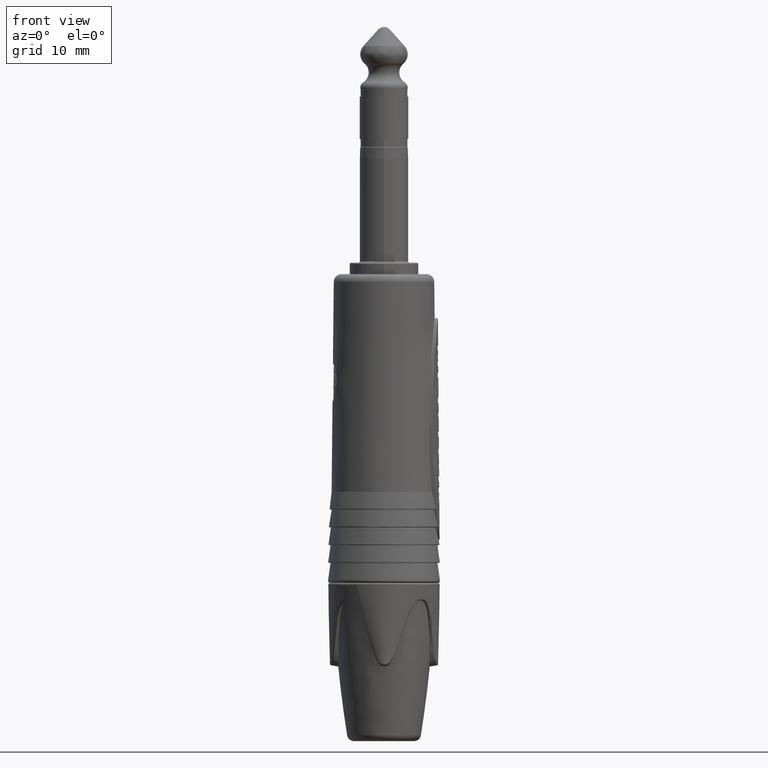
[diagram: clean part render]
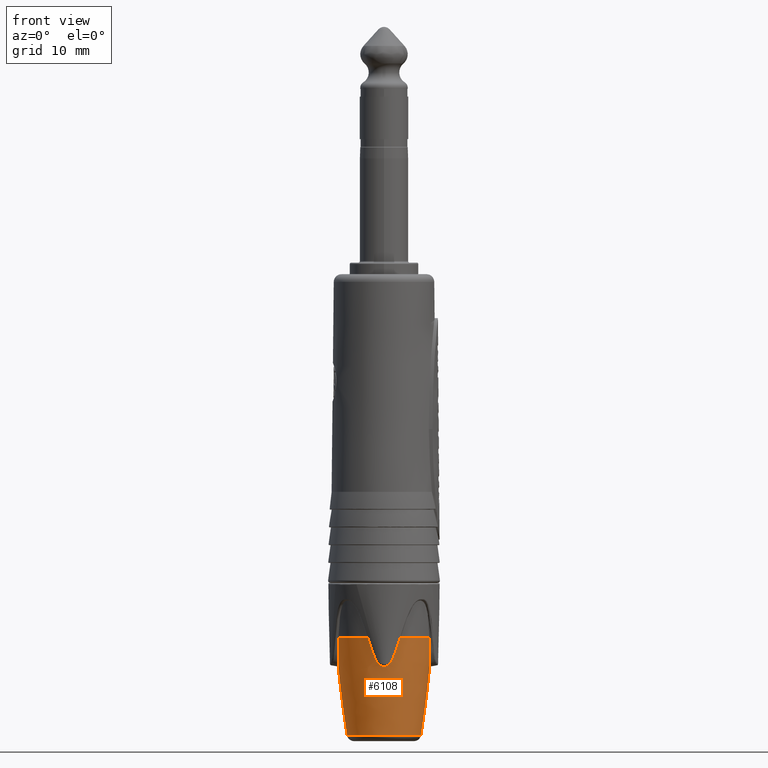
[diagram: same view with one face highlighted and labeled with its STEP entity id]
A machine part, front view. The second image highlights one B-rep face of the part: STEP entity #6108.
In plain terms, the highlighted face is a freeform B-spline surface patch.
Its self-contained STEP definition (entity closure, byte-faithful):
#52=CARTESIAN_POINT('',(1.875179710663E0,-5.910851018883E0,-4.916340000539E1));
#53=CARTESIAN_POINT('',(1.834458048781E0,-5.912980867123E0,-4.929712143090E1));
#54=CARTESIAN_POINT('',(1.755068878985E0,-5.916197511891E0,-4.955490481412E1));
#55=CARTESIAN_POINT('',(1.642533156775E0,-5.918552264357E0,-4.991081412096E1));
#56=CARTESIAN_POINT('',(1.534442180647E0,-5.919130703363E0,-5.024102571511E1));
#57=CARTESIAN_POINT('',(1.429600564056E0,-5.918370577495E0,-5.054822913179E1));
#58=CARTESIAN_POINT('',(1.326387766742E0,-5.916840193208E0,-5.083376196006E1));
#59=CARTESIAN_POINT('',(1.221233425204E0,-5.914857361688E0,-5.110389649942E1));
#60=CARTESIAN_POINT('',(1.118283861204E0,-5.912902551534E0,-5.134489744786E1));
#61=CARTESIAN_POINT('',(1.012012093298E0,-5.911602088583E0,-5.156300582216E1));
#62=CARTESIAN_POINT('',(9.012623192988E-1,-5.910946806758E0,-5.175895841291E1));
#63=CARTESIAN_POINT('',(7.777007258640E-1,-5.911574733193E0,-5.193693654727E1));
#64=CARTESIAN_POINT('',(6.249637256877E-1,-5.913844758225E0,-5.210302965275E1));
#65=CARTESIAN_POINT('',(4.405433769313E-1,-5.917871330197E0,-5.223650735339E1));
#66=CARTESIAN_POINT('',(2.172704898572E-1,-5.922260620308E0,-5.232007666811E1));
#67=CARTESIAN_POINT('',(7.337829063037E-2,-5.923477169424E0,-5.233390176513E1));
#68=CARTESIAN_POINT('',(-2.002234560644E-14,-5.923477169381E0,
-5.233390176556E1));
#74=CARTESIAN_POINT('',(-1.433572221522E2,3.478114662995E-14,
-3.766172366991E1));
#75=DIRECTION('',(0.E0,-1.E0,0.E0));
#76=DIRECTION('',(9.875777213030E-1,0.E0,-1.571312966471E-1));
#77=AXIS2_PLACEMENT_3D('',#74,#75,#76);
#79=CARTESIAN_POINT('',(0.E0,0.E0,-6.123141816698E1));
#80=DIRECTION('',(0.E0,0.E0,1.E0));
#81=DIRECTION('',(-1.E0,0.E0,0.E0));
#82=AXIS2_PLACEMENT_3D('',#79,#80,#81);
#84=CARTESIAN_POINT('',(1.433572221522E2,-1.788744234304E-14,
-3.766172366991E1));
#85=DIRECTION('',(0.E0,1.E0,0.E0));
#86=DIRECTION('',(-9.875777213030E-1,0.E0,-1.571312966471E-1));
#87=AXIS2_PLACEMENT_3D('',#84,#85,#86);
#89=CARTESIAN_POINT('',(5.923477169381E0,4.872080167943E-8,-5.233390176556E1));
#90=CARTESIAN_POINT('',(5.923477169358E0,-7.905117981753E-2,-5.233390176580E1));
#91=CARTESIAN_POINT('',(5.922052053947E0,-2.316773253327E-1,-5.231714090984E1));
#92=CARTESIAN_POINT('',(5.917572631786E0,-4.535341655852E-1,-5.222948734047E1));
#93=CARTESIAN_POINT('',(5.913510662887E0,-6.417769712108E-1,-5.208843472345E1));
#94=CARTESIAN_POINT('',(5.911380654618E0,-7.968981006221E-1,-5.191250475629E1));
#95=CARTESIAN_POINT('',(5.910965632853E0,-9.212794774285E-1,-5.172654485050E1));
#96=CARTESIAN_POINT('',(5.911827255006E0,-1.033723186739E0,-5.152088066504E1));
#97=CARTESIAN_POINT('',(5.913250632258E0,-1.139875686271E0,-5.129686203912E1));
#98=CARTESIAN_POINT('',(5.915288368659E0,-1.242175863740E0,-5.105158138940E1));
#99=CARTESIAN_POINT('',(5.917143384587E0,-1.345160674651E0,-5.078320597617E1));
#100=CARTESIAN_POINT('',(5.918544203984E0,-1.445225135356E0,-5.050317898360E1));
#101=CARTESIAN_POINT('',(5.919122405654E0,-1.546823311163E0,-5.020371219331E1));
#102=CARTESIAN_POINT('',(5.918417242707E0,-1.651161245531E0,-4.988377013454E1));
#103=CARTESIAN_POINT('',(5.916031399196E0,-1.759575238774E0,-4.954031968929E1));
#104=CARTESIAN_POINT('',(5.912900128867E0,-1.836003165491E0,-4.929204663238E1));
#105=CARTESIAN_POINT('',(5.910851111423E0,-1.875179418964E0,-4.916340000538E1));
#111=CARTESIAN_POINT('',(5.895370246613E0,-2.071790861949E0,-4.852603937695E1));
#138=CARTESIAN_POINT('',(5.910851111423E0,-1.875179418964E0,-4.916340000538E1));
#139=CARTESIAN_POINT('',(5.909700894473E0,-1.897276664465E0,-4.909076879057E1));
#140=CARTESIAN_POINT('',(5.907010828662E0,-1.941298194827E0,-4.894673824752E1));
#141=CARTESIAN_POINT('',(5.901860839818E0,-2.006564809322E0,-4.873516083732E1));
#142=CARTESIAN_POINT('',(5.897664359079E0,-2.050037355403E0,-4.859555672493E1));
#143=CARTESIAN_POINT('',(5.895370246613E0,-2.071790861949E0,-4.852603937695E1));
#145=CARTESIAN_POINT('',(0.E0,0.E0,-4.852583203403E1));
#146=DIRECTION('',(0.E0,0.E0,1.E0));
#147=DIRECTION('',(3.315591024008E-1,-9.434344500892E-1,0.E0));
#148=AXIS2_PLACEMENT_3D('',#145,#146,#147);
#150=CARTESIAN_POINT('',(0.E0,0.E0,-4.852583203403E1));
#151=DIRECTION('',(0.E0,0.E0,1.E0));
#152=DIRECTION('',(-9.434344446351E-1,-3.315591179204E-1,0.E0));
#153=AXIS2_PLACEMENT_3D('',#150,#151,#152);
#171=CARTESIAN_POINT('',(2.071792250662E0,-5.895370034508E0,-4.852603587080E1));
#173=CARTESIAN_POINT('',(2.071792250662E0,-5.895370034508E0,-4.852603587080E1));
#174=CARTESIAN_POINT('',(2.050038731869E0,-5.897664152527E0,-4.859555321701E1));
#175=CARTESIAN_POINT('',(2.006564592116E0,-5.901860790190E0,-4.873516248002E1));
#176=CARTESIAN_POINT('',(1.941298630676E0,-5.907010718830E0,-4.894673778101E1));
#177=CARTESIAN_POINT('',(1.897276955925E0,-5.909700800852E0,-4.909076879118E1));
#178=CARTESIAN_POINT('',(1.875179710663E0,-5.910851018883E0,-4.916340000539E1));
#566=CARTESIAN_POINT('',(-2.002234560644E-14,-5.923477169381E0,
-5.233390176556E1));
#567=CARTESIAN_POINT('',(-7.213547899493E-2,-5.923477169339E0,
-5.233390176599E1));
#568=CARTESIAN_POINT('',(-2.135990446687E-1,-5.922293791511E0,
-5.232023343906E1));
#569=CARTESIAN_POINT('',(-4.294029303049E-1,-5.918114975303E0,
-5.224191501414E1));
#570=CARTESIAN_POINT('',(-6.142840832710E-1,-5.914061528668E0,
-5.211239022737E1));
#571=CARTESIAN_POINT('',(-7.657145439086E-1,-5.911708467421E0,
-5.195160977790E1));
#572=CARTESIAN_POINT('',(-8.881210263004E-1,-5.910963232877E0,
-5.177946667423E1));
#573=CARTESIAN_POINT('',(-9.960171174867E-1,-5.911456247159E0,
-5.159304218988E1));
#574=CARTESIAN_POINT('',(-1.099666723316E0,-5.912637823779E0,
-5.138501162046E1));
#575=CARTESIAN_POINT('',(-1.201749879997E0,-5.914449375907E0,
-5.115160057521E1));
#576=CARTESIAN_POINT('',(-1.306312129406E0,-5.916499093E0,-5.088697165501E1));
#577=CARTESIAN_POINT('',(-1.412763760904E0,-5.918162289753E0,
-5.059637911759E1));
#578=CARTESIAN_POINT('',(-1.521195310729E0,-5.919120636560E0,
-5.028078091457E1));
#579=CARTESIAN_POINT('',(-1.634057436831E0,-5.918680854615E0,
-4.993735702509E1));
#580=CARTESIAN_POINT('',(-1.751261300103E0,-5.916340504057E0,
-4.956723903987E1));
#581=CARTESIAN_POINT('',(-1.833235054648E0,-5.913044933156E0,
-4.930113621033E1));
#582=CARTESIAN_POINT('',(-1.875179321719E0,-5.910851142271E0,
-4.916340000542E1));
#588=CARTESIAN_POINT('',(-2.071793424779E0,-5.895370014426E0,
-4.852603088285E1));
#610=CARTESIAN_POINT('',(-1.875179321719E0,-5.910851142271E0,
-4.916340000542E1));
#611=CARTESIAN_POINT('',(-1.897276567242E0,-5.909700925684E0,
-4.909076879060E1));
#612=CARTESIAN_POINT('',(-1.941298448508E0,-5.907010826519E0,
-4.894673711376E1));
#613=CARTESIAN_POINT('',(-2.006563484230E0,-5.901860992100E0,
-4.873516480555E1));
#614=CARTESIAN_POINT('',(-2.050039889819E0,-5.897664137216E0,
-4.859554822160E1));
#615=CARTESIAN_POINT('',(-2.071793424779E0,-5.895370014426E0,
-4.852603088285E1));
#638=CARTESIAN_POINT('',(-5.895370173568E0,-2.071790618096E0,
-4.852604139411E1));
#640=CARTESIAN_POINT('',(-5.895370173568E0,-2.071790618096E0,
-4.852604139411E1));
#641=CARTESIAN_POINT('',(-5.897664284999E0,-2.050037117792E0,
-4.859555874632E1));
#642=CARTESIAN_POINT('',(-5.901860679625E0,-2.006565487713E0,
-4.873515989968E1));
#643=CARTESIAN_POINT('',(-5.907010709054E0,-1.941298499703E0,
-4.894673851825E1));
#644=CARTESIAN_POINT('',(-5.909700769642E0,-1.897277053141E0,
-4.909076879118E1));
#645=CARTESIAN_POINT('',(-5.910850988036E0,-1.875179807895E0,
-4.916340000539E1));
#651=CARTESIAN_POINT('',(-5.910850988036E0,-1.875179807895E0,
-4.916340000539E1));
#652=CARTESIAN_POINT('',(-5.913081933073E0,-1.832525237903E0,
-4.930346869722E1));
#653=CARTESIAN_POINT('',(-5.916393163356E0,-1.749560741568E0,
-4.957270589156E1));
#654=CARTESIAN_POINT('',(-5.918688687691E0,-1.632849706219E0,
-4.994107208805E1));
#655=CARTESIAN_POINT('',(-5.919119323633E0,-1.520777142683E0,
-5.028201471247E1));
#656=CARTESIAN_POINT('',(-5.918149636833E0,-1.411632091086E0,
-5.059967977863E1));
#657=CARTESIAN_POINT('',(-5.916437881004E0,-1.302191412831E0,
-5.089812398307E1));
#658=CARTESIAN_POINT('',(-5.914189163898E0,-1.189694208883E0,
-5.118154736397E1));
#659=CARTESIAN_POINT('',(-5.912313895847E0,-1.076982850900E0,
-5.143409387474E1));
#660=CARTESIAN_POINT('',(-5.911098177653E0,-9.567995549430E-1,
-5.166642443232E1));
#661=CARTESIAN_POINT('',(-5.911113824772E0,-8.278072197023E-1,
-5.187142291628E1));
#662=CARTESIAN_POINT('',(-5.912983648674E0,-6.697216965735E-1,
-5.206237154843E1));
#663=CARTESIAN_POINT('',(-5.917064256232E0,-4.758637705481E-1,
-5.221768197033E1));
#664=CARTESIAN_POINT('',(-5.921876627572E0,-2.448159503533E-1,
-5.231499750988E1));
#665=CARTESIAN_POINT('',(-5.923477169454E0,-8.382019821008E-2,
-5.233390176482E1));
#666=CARTESIAN_POINT('',(-5.923477169381E0,-1.461624142906E-7,
-5.233390176556E1));
#805=CARTESIAN_POINT('',(5.923477169381E0,4.872080167943E-8,-5.233390176556E1));
#5813=CARTESIAN_POINT('',(-4.779436043284E0,0.E0,-6.123141816698E1));
#5815=VERTEX_POINT('',#5813);
#5817=CARTESIAN_POINT('',(4.779436043284E0,0.E0,-6.123141816698E1));
#5819=VERTEX_POINT('',#5817);
#5830=VERTEX_POINT('',#805);
#5831=VERTEX_POINT('',#105);
#5832=VERTEX_POINT('',#111);
#5834=VERTEX_POINT('',#171);
#5835=VERTEX_POINT('',#178);
#5836=VERTEX_POINT('',#68);
#5837=VERTEX_POINT('',#582);
#5838=VERTEX_POINT('',#588);
#5840=VERTEX_POINT('',#638);
#5841=VERTEX_POINT('',#645);
#5842=VERTEX_POINT('',#666);
#6064=CARTESIAN_POINT('',(6.248831032367E0,0.E0,-4.852583203403E1));
#6065=CARTESIAN_POINT('',(5.939855088266E0,0.E0,-5.278063785672E1));
#6066=CARTESIAN_POINT('',(5.449759678259E0,0.E0,-5.701840203277E1));
#6067=CARTESIAN_POINT('',(4.779436043284E0,0.E0,-6.123141816698E1));
#6068=CARTESIAN_POINT('',(6.248831032367E0,-1.249766206473E1,
-4.852583203403E1));
#6069=CARTESIAN_POINT('',(5.939855088266E0,-1.187971017653E1,
-5.278063785672E1));
#6070=CARTESIAN_POINT('',(5.449759678259E0,-1.089951935652E1,
-5.701840203277E1));
#6071=CARTESIAN_POINT('',(4.779436043284E0,-9.558872086567E0,
-6.123141816698E1));
#6072=CARTESIAN_POINT('',(-6.248831032367E0,-1.249766206473E1,
-4.852583203403E1));
#6073=CARTESIAN_POINT('',(-5.939855088266E0,-1.187971017653E1,
-5.278063785672E1));
#6074=CARTESIAN_POINT('',(-5.449759678259E0,-1.089951935652E1,
-5.701840203277E1));
#6075=CARTESIAN_POINT('',(-4.779436043284E0,-9.558872086567E0,
-6.123141816698E1));
#6076=CARTESIAN_POINT('',(-6.248831032367E0,0.E0,-4.852583203403E1));
#6077=CARTESIAN_POINT('',(-5.939855088266E0,0.E0,-5.278063785672E1));
#6078=CARTESIAN_POINT('',(-5.449759678259E0,0.E0,-5.701840203277E1));
#6079=CARTESIAN_POINT('',(-4.779436043284E0,0.E0,-6.123141816698E1));
#6080=(BOUNDED_SURFACE()B_SPLINE_SURFACE(3,3,((#6064,#6065,#6066,#6067),(#6068,
#6069,#6070,#6071),(#6072,#6073,#6074,#6075),(#6076,#6077,#6078,#6079)),
.UNSPECIFIED.,.F.,.F.,.F.)B_SPLINE_SURFACE_WITH_KNOTS((4,4),(4,4),(0.E0,1.E0),(
0.E0,1.E0),.UNSPECIFIED.)GEOMETRIC_REPRESENTATION_ITEM()RATIONAL_B_SPLINE_SURFACE(((2.000909666043E0,1.999696777986E0,1.999696777986E0,2.000909666043E0),(
6.669698886809E-1,6.665655926619E-1,6.665655926619E-1,6.669698886809E-1),(
6.669698886809E-1,6.665655926619E-1,6.665655926619E-1,6.669698886809E-1),(
2.000909666043E0,1.999696777986E0,1.999696777986E0,2.000909666043E0)))REPRESENTATION_ITEM('')SURFACE());
#6082=ORIENTED_EDGE('',*,*,#6081,.F.);
#6084=ORIENTED_EDGE('',*,*,#6083,.F.);
#6086=ORIENTED_EDGE('',*,*,#6085,.F.);
#6088=ORIENTED_EDGE('',*,*,#6087,.T.);
#6090=ORIENTED_EDGE('',*,*,#6089,.F.);
#6092=ORIENTED_EDGE('',*,*,#6091,.F.);
#6094=ORIENTED_EDGE('',*,*,#6093,.T.);
#6096=ORIENTED_EDGE('',*,*,#6095,.F.);
#6098=ORIENTED_EDGE('',*,*,#6097,.F.);
#6099=ORIENTED_EDGE('',*,*,#6052,.F.);
#6101=ORIENTED_EDGE('',*,*,#6100,.F.);
#6103=ORIENTED_EDGE('',*,*,#6102,.T.);
#6105=ORIENTED_EDGE('',*,*,#6104,.F.);
#6106=EDGE_LOOP('',(#6082,#6084,#6086,#6088,#6090,#6092,#6094,#6096,#6098,#6099,
#6101,#6103,#6105));
#6107=FACE_OUTER_BOUND('',#6106,.F.);
#6108=ADVANCED_FACE('',(#6107),#6080,.T.);
#69=B_SPLINE_CURVE_WITH_KNOTS('',3,(#52,#53,#54,#55,#56,#57,#58,#59,#60,#61,#62,
#63,#64,#65,#66,#67,#68),.UNSPECIFIED.,.F.,.F.,(4,1,1,1,1,1,1,1,1,1,1,1,1,1,4),(
0.E0,7.142857142857E-2,1.428571428571E-1,2.142857142857E-1,2.857142857143E-1,
3.571428571429E-1,4.285714285714E-1,5.E-1,5.714285714286E-1,6.428571428571E-1,
7.142857142857E-1,7.857142857143E-1,8.571428571429E-1,9.285714285714E-1,1.E0),
.UNSPECIFIED.);
#78=CIRCLE('',#77,1.5E2);
#83=CIRCLE('',#82,4.779436043284E0);
#88=CIRCLE('',#87,1.5E2);
#106=B_SPLINE_CURVE_WITH_KNOTS('',3,(#89,#90,#91,#92,#93,#94,#95,#96,#97,#98,
#99,#100,#101,#102,#103,#104,#105),.UNSPECIFIED.,.F.,.F.,(4,1,1,1,1,1,1,1,1,1,1,
1,1,1,4),(0.E0,7.142857142857E-2,1.428571428571E-1,2.142857142857E-1,
2.857142857143E-1,3.571428571429E-1,4.285714285714E-1,5.E-1,5.714285714286E-1,
6.428571428571E-1,7.142857142857E-1,7.857142857143E-1,8.571428571429E-1,
9.285714285714E-1,1.E0),.UNSPECIFIED.);
#144=B_SPLINE_CURVE_WITH_KNOTS('',3,(#138,#139,#140,#141,#142,#143),
.UNSPECIFIED.,.F.,.F.,(4,1,1,4),(0.E0,3.333333333333E-1,6.666666666667E-1,1.E0),
.UNSPECIFIED.);
#149=CIRCLE('',#148,6.248831032367E0);
#154=CIRCLE('',#153,6.248831032367E0);
#179=B_SPLINE_CURVE_WITH_KNOTS('',3,(#173,#174,#175,#176,#177,#178),
.UNSPECIFIED.,.F.,.F.,(4,1,1,4),(0.E0,3.333333333333E-1,6.666666666667E-1,1.E0),
.UNSPECIFIED.);
#583=B_SPLINE_CURVE_WITH_KNOTS('',3,(#566,#567,#568,#569,#570,#571,#572,#573,
#574,#575,#576,#577,#578,#579,#580,#581,#582),.UNSPECIFIED.,.F.,.F.,(4,1,1,1,1,
1,1,1,1,1,1,1,1,1,4),(0.E0,7.142857142857E-2,1.428571428571E-1,
2.142857142857E-1,2.857142857143E-1,3.571428571429E-1,4.285714285714E-1,5.E-1,
5.714285714286E-1,6.428571428571E-1,7.142857142857E-1,7.857142857143E-1,
8.571428571429E-1,9.285714285714E-1,1.E0),.UNSPECIFIED.);
#616=B_SPLINE_CURVE_WITH_KNOTS('',3,(#610,#611,#612,#613,#614,#615),
.UNSPECIFIED.,.F.,.F.,(4,1,1,4),(0.E0,3.333333333333E-1,6.666666666667E-1,1.E0),
.UNSPECIFIED.);
#646=B_SPLINE_CURVE_WITH_KNOTS('',3,(#640,#641,#642,#643,#644,#645),
.UNSPECIFIED.,.F.,.F.,(4,1,1,4),(0.E0,3.333333333333E-1,6.666666666667E-1,1.E0),
.UNSPECIFIED.);
#667=B_SPLINE_CURVE_WITH_KNOTS('',3,(#651,#652,#653,#654,#655,#656,#657,#658,
#659,#660,#661,#662,#663,#664,#665,#666),.UNSPECIFIED.,.F.,.F.,(4,1,1,1,1,1,1,1,
1,1,1,1,1,4),(0.E0,7.692307692308E-2,1.538461538462E-1,2.307692307692E-1,
3.076923076923E-1,3.846153846154E-1,4.615384615385E-1,5.384615384615E-1,
6.153846153846E-1,6.923076923077E-1,7.692307692308E-1,8.461538461538E-1,
9.230769230769E-1,1.E0),.UNSPECIFIED.);
#6052=EDGE_CURVE('',#5835,#5836,#69,.T.);
#6081=EDGE_CURVE('',#5830,#5831,#106,.T.);
#6083=EDGE_CURVE('',#5819,#5830,#78,.T.);
#6085=EDGE_CURVE('',#5815,#5819,#83,.T.);
#6087=EDGE_CURVE('',#5815,#5842,#88,.T.);
#6089=EDGE_CURVE('',#5841,#5842,#667,.T.);
#6091=EDGE_CURVE('',#5840,#5841,#646,.T.);
#6093=EDGE_CURVE('',#5840,#5838,#154,.T.);
#6095=EDGE_CURVE('',#5837,#5838,#616,.T.);
#6097=EDGE_CURVE('',#5836,#5837,#583,.T.);
#6100=EDGE_CURVE('',#5834,#5835,#179,.T.);
#6102=EDGE_CURVE('',#5834,#5832,#149,.T.);
#6104=EDGE_CURVE('',#5831,#5832,#144,.T.);